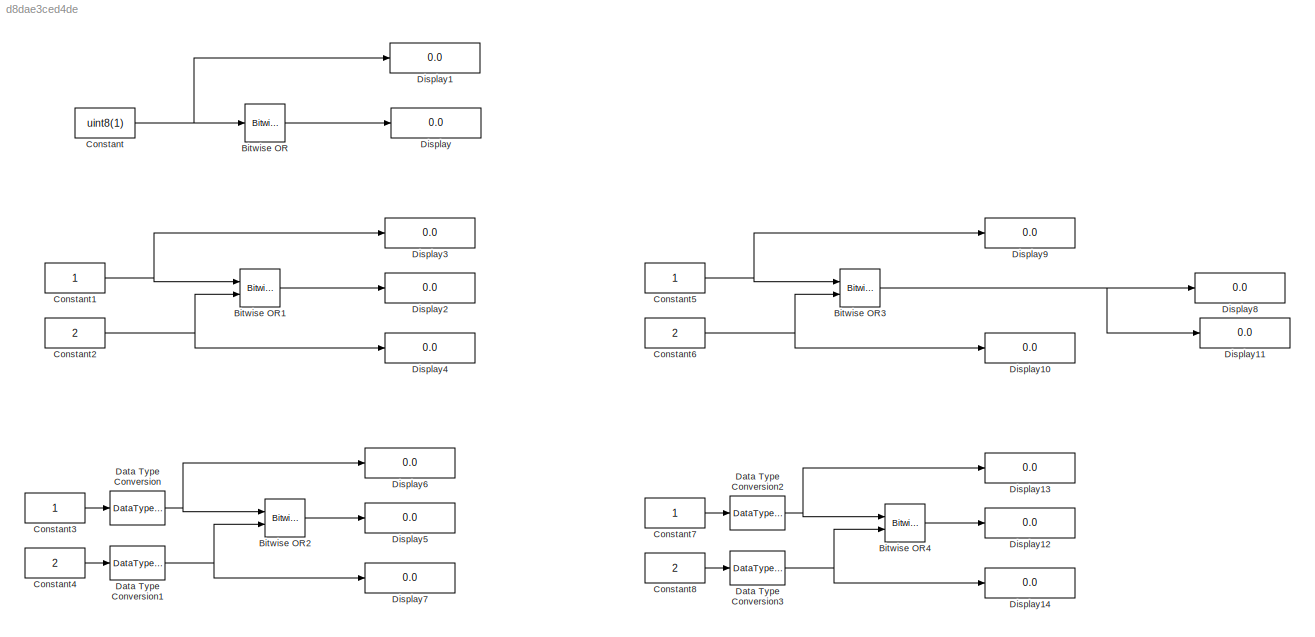
MODEL slx_d8dae3ced4de
KIND model
CONFIG AbsTol = auto
CONFIG EnableMultiTasking = off
CONFIG FixedStep = auto
CONFIG MaxStep = auto
CONFIG MinStep = auto
CONFIG RelTol = 1e-3
CONFIG SampleTimeConstraint = Unconstrained
CONFIG SolverName = VariableStepAuto
CONFIG StartTime = 0.0
CONFIG StopTime = 10.0
BLOCK [Reference] Bitwise OR  REF=simulink/Logic and Bit
Operations/Bitwise
Operator
  Ports = [1, 1]
  SourceBlock = simulink/Logic and Bit\nOperations/Bitwise\nOperator
  SourceProductBaseCode = SL
  SourceType = Bitwise Operator
BLOCK [Reference] Bitwise OR1  REF=simulink/Logic and Bit
Operations/Bitwise
Operator
  Ports = [2, 1]
  SourceBlock = simulink/Logic and Bit\nOperations/Bitwise\nOperator
  SourceProductBaseCode = SL
  SourceType = Bitwise Operator
BLOCK [Reference] Bitwise OR2  REF=simulink/Logic and Bit
Operations/Bitwise
Operator
  Ports = [2, 1]
  SourceBlock = simulink/Logic and Bit\nOperations/Bitwise\nOperator
  SourceProductBaseCode = SL
  SourceType = Bitwise Operator
BLOCK [Reference] Bitwise OR3  REF=simulink/Logic and Bit
Operations/Bitwise
Operator
  Ports = [2, 1]
  SourceBlock = simulink/Logic and Bit\nOperations/Bitwise\nOperator
  SourceProductBaseCode = SL
  SourceType = Bitwise Operator
BLOCK [Reference] Bitwise OR4  REF=simulink/Logic and Bit
Operations/Bitwise
Operator
  Ports = [2, 1]
  SourceBlock = simulink/Logic and Bit\nOperations/Bitwise\nOperator
  SourceProductBaseCode = SL
  SourceType = Bitwise Operator
BLOCK [Constant] Constant
  Value = uint8(1)
BLOCK [Constant] Constant1
  OutDataTypeStr = uint8
BLOCK [Constant] Constant2
  OutDataTypeStr = uint8
  Value = 2
BLOCK [Constant] Constant3
BLOCK [Constant] Constant4
  Value = 2
BLOCK [Constant] Constant5
  OutDataTypeStr = uint8
BLOCK [Constant] Constant6
  OutDataTypeStr = uint8
  Value = 2
BLOCK [Constant] Constant7
BLOCK [Constant] Constant8
  Value = 2
BLOCK [DataTypeConversion] Data Type Conversion
  OutDataTypeStr = uint8
  RndMeth = Floor
  SaturateOnIntegerOverflow = off
BLOCK [DataTypeConversion] Data Type Conversion1
  OutDataTypeStr = uint8
  RndMeth = Floor
  SaturateOnIntegerOverflow = off
BLOCK [DataTypeConversion] Data Type Conversion2
  OutDataTypeStr = uint8
  RndMeth = Floor
  SaturateOnIntegerOverflow = off
BLOCK [DataTypeConversion] Data Type Conversion3
  OutDataTypeStr = uint8
  RndMeth = Floor
  SaturateOnIntegerOverflow = off
BLOCK [Display] Display
  Decimation = 1
  Format = binary (Stored Integer)
  Ports = [1]
BLOCK [Display] Display1
  Decimation = 1
  Format = binary (Stored Integer)
  Ports = [1]
BLOCK [Display] Display10
  Decimation = 1
  Format = binary (Stored Integer)
  Ports = [1]
BLOCK [Display] Display11
  Decimation = 1
  Ports = [1]
BLOCK [Display] Display12
  Decimation = 1
  Format = binary (Stored Integer)
  Ports = [1]
BLOCK [Display] Display13
  Decimation = 1
  Format = binary (Stored Integer)
  Ports = [1]
BLOCK [Display] Display14
  Decimation = 1
  Format = binary (Stored Integer)
  Ports = [1]
BLOCK [Display] Display2
  Decimation = 1
  Format = binary (Stored Integer)
  Ports = [1]
BLOCK [Display] Display3
  Decimation = 1
  Format = binary (Stored Integer)
  Ports = [1]
BLOCK [Display] Display4
  Decimation = 1
  Format = binary (Stored Integer)
  Ports = [1]
BLOCK [Display] Display5
  Decimation = 1
  Format = binary (Stored Integer)
  Ports = [1]
BLOCK [Display] Display6
  Decimation = 1
  Format = binary (Stored Integer)
  Ports = [1]
BLOCK [Display] Display7
  Decimation = 1
  Format = binary (Stored Integer)
  Ports = [1]
BLOCK [Display] Display8
  Decimation = 1
  Format = binary (Stored Integer)
  Ports = [1]
BLOCK [Display] Display9
  Decimation = 1
  Format = binary (Stored Integer)
  Ports = [1]
LINE Bitwise OR1:1 -> Display2:1
LINE Bitwise OR2:1 -> Display5:1
NET Bitwise OR3:1 -> Display11:1, Display8:1
LINE Bitwise OR4:1 -> Display12:1
LINE Bitwise OR:1 -> Display:1
NET Constant1:1 -> Bitwise OR1:1, Display3:1
NET Constant2:1 -> Bitwise OR1:2, Display4:1
LINE Constant3:1 -> Data Type Conversion:1
LINE Constant4:1 -> Data Type Conversion1:1
NET Constant5:1 -> Bitwise OR3:1, Display9:1
NET Constant6:1 -> Bitwise OR3:2, Display10:1
LINE Constant7:1 -> Data Type Conversion2:1
LINE Constant8:1 -> Data Type Conversion3:1
NET Constant:1 -> Bitwise OR:1, Display1:1
NET Data Type Conversion1:1 -> Bitwise OR2:2, Display7:1
NET Data Type Conversion2:1 -> Bitwise OR4:1, Display13:1
NET Data Type Conversion3:1 -> Bitwise OR4:2, Display14:1
NET Data Type Conversion:1 -> Bitwise OR2:1, Display6:1
note: NET lines group one-source signal fan-out (src -> all destinations, sorted); 1:1 wires keep LINE
